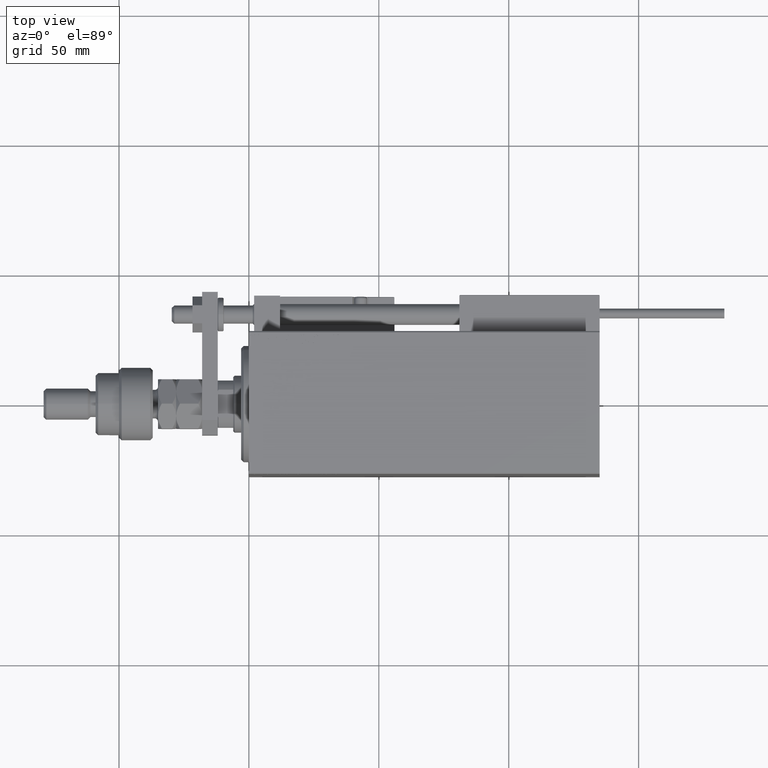
[diagram: clean part render]
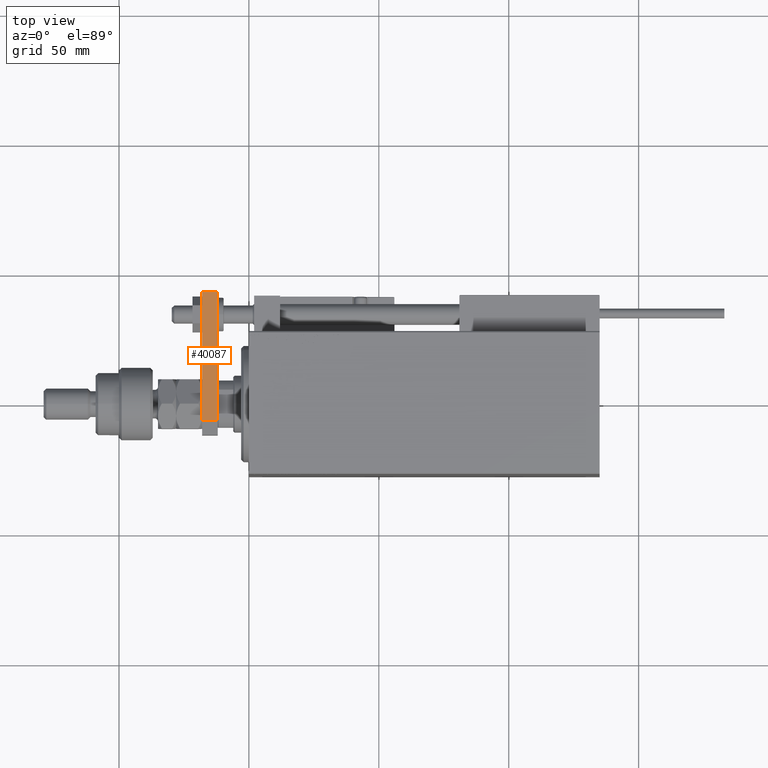
[diagram: same view with one face highlighted and labeled with its STEP entity id]
A machine part, top view. The second image highlights one B-rep face of the part: STEP entity #40087.
In plain terms, the highlighted planar face has unit normal (-0, -0, -1).
Its self-contained STEP definition (entity closure, byte-faithful):
#9 = EDGE_CURVE ( 'NONE', #441, #11883, #453, .T. ) ;
#441 = VERTEX_POINT ( 'NONE', #12732 ) ;
#453 = LINE ( 'NONE', #13342, #48655 ) ;
#1575 = VECTOR ( 'NONE', #52484, 1000.000000000000000 ) ;
#2348 = FACE_OUTER_BOUND ( 'NONE', #27407, .T. ) ;
#4062 = ORIENTED_EDGE ( 'NONE', *, *, #52717, .T. ) ;
#4091 = LINE ( 'NONE', #48456, #1575 ) ;
#4324 = AXIS2_PLACEMENT_3D ( 'NONE', #4829, #44508, #35915 ) ;
#4829 = CARTESIAN_POINT ( 'NONE',  ( 12.50000000000000355, 4.814824860968089633E-32, 6.000000000000000000 ) ) ;
#5314 = DIRECTION ( 'NONE',  ( -6.308085367188389994E-17, 1.000000000000000000, 0.000000000000000000 ) ) ;
#7015 = ORIENTED_EDGE ( 'NONE', *, *, #9, .F. ) ;
#8444 = CARTESIAN_POINT ( 'NONE',  ( 12.50000000000000355, 5.659999999999991260, 6.000000000000000000 ) ) ;
#8549 = CARTESIAN_POINT ( 'NONE',  ( 12.50000000000000355, 4.814824860968089633E-32, 6.000000000000000000 ) ) ;
#8697 = ORIENTED_EDGE ( 'NONE', *, *, #35036, .T. ) ;
#11883 = VERTEX_POINT ( 'NONE', #38881 ) ;
#12732 = CARTESIAN_POINT ( 'NONE',  ( 12.50000000000000000, 55.00000000000000000, 6.000000000000000000 ) ) ;
#13342 = CARTESIAN_POINT ( 'NONE',  ( 12.50000000000000000, 55.00000000000000000, 6.000000000000000000 ) ) ;
#15572 = DIRECTION ( 'NONE',  ( 0.000000000000000000, 0.000000000000000000, -1.000000000000000000 ) ) ;
#19830 = EDGE_CURVE ( 'NONE', #30195, #441, #33263, .T. ) ;
#23265 = VERTEX_POINT ( 'NONE', #35919 ) ;
#23885 = CARTESIAN_POINT ( 'NONE',  ( 12.50000000000000355, 5.659999999999991260, 6.000000000000000000 ) ) ;
#25165 = VECTOR ( 'NONE', #5314, 1000.000000000000000 ) ;
#25294 = ORIENTED_EDGE ( 'NONE', *, *, #19830, .F. ) ;
#27407 = EDGE_LOOP ( 'NONE', ( #25294, #4062, #8697, #7015 ) ) ;
#30195 = VERTEX_POINT ( 'NONE', #8444 ) ;
#33263 = LINE ( 'NONE', #8549, #25165 ) ;
#35036 = EDGE_CURVE ( 'NONE', #23265, #11883, #4091, .T. ) ;
#35915 = DIRECTION ( 'NONE',  ( 6.308085367188389994E-17, -1.000000000000000000, 0.000000000000000000 ) ) ;
#35919 = CARTESIAN_POINT ( 'NONE',  ( 12.50000000000000355, 5.659999999999991260, 0.000000000000000000 ) ) ;
#38881 = CARTESIAN_POINT ( 'NONE',  ( 12.50000000000000000, 55.00000000000000000, 0.000000000000000000 ) ) ;
#40087 = ADVANCED_FACE ( 'NONE', ( #2348 ), #45692, .F. ) ;
#44508 = DIRECTION ( 'NONE',  ( -1.000000000000000000, -6.308085367188389994E-17, 0.000000000000000000 ) ) ;
#45028 = VECTOR ( 'NONE', #15572, 1000.000000000000000 ) ;
#45074 = DIRECTION ( 'NONE',  ( -0.000000000000000000, -0.000000000000000000, -1.000000000000000000 ) ) ;
#45692 = PLANE ( 'NONE',  #4324 ) ;
#48456 = CARTESIAN_POINT ( 'NONE',  ( 12.50000000000000355, 4.814824860968089633E-32, 0.000000000000000000 ) ) ;
#48612 = LINE ( 'NONE', #23885, #45028 ) ;
#48655 = VECTOR ( 'NONE', #45074, 1000.000000000000000 ) ;
#52484 = DIRECTION ( 'NONE',  ( -6.308085367188389994E-17, 1.000000000000000000, 0.000000000000000000 ) ) ;
#52717 = EDGE_CURVE ( 'NONE', #30195, #23265, #48612, .T. ) ;